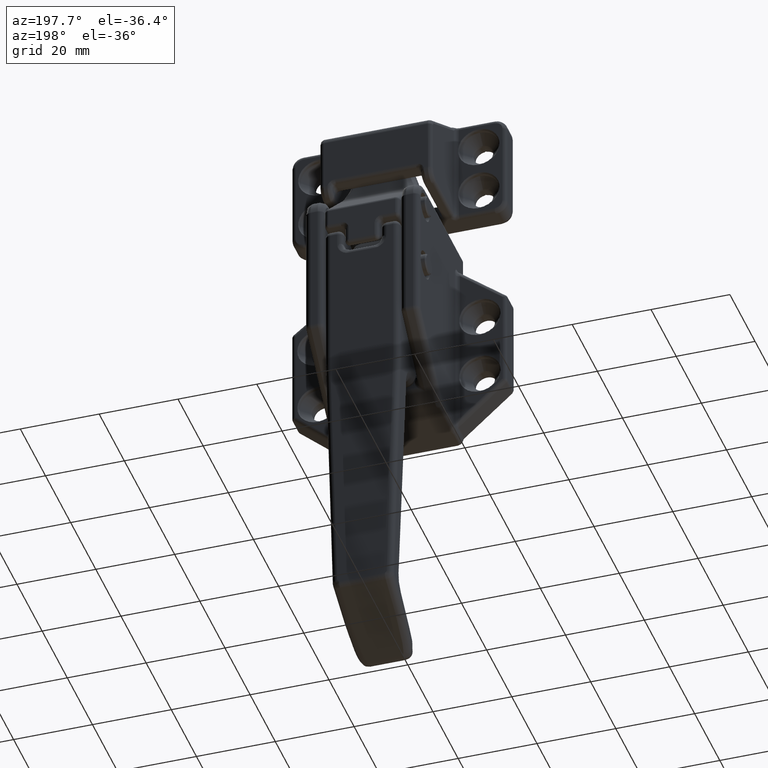
[diagram: clean part render]
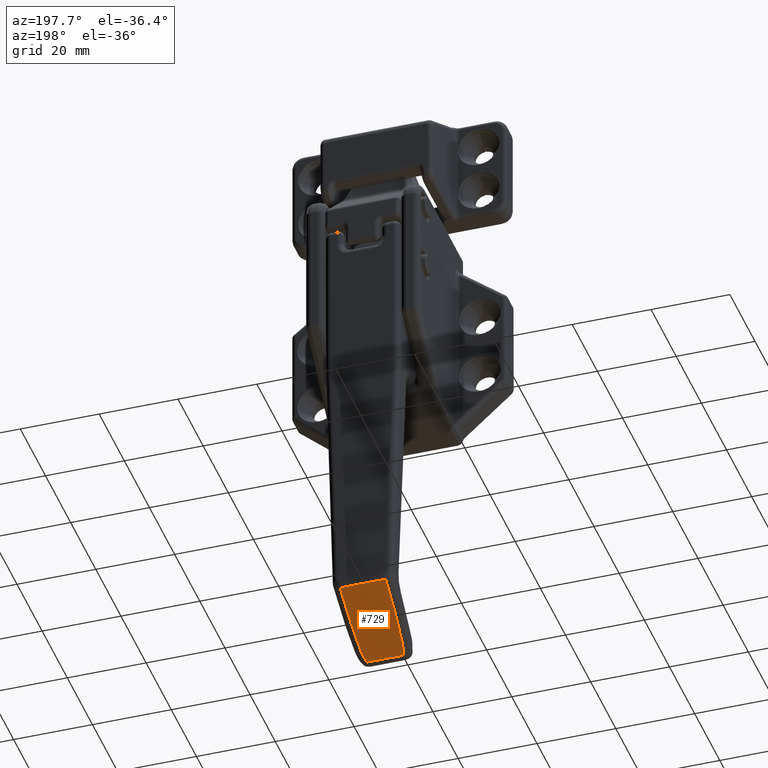
[diagram: same view with one face highlighted and labeled with its STEP entity id]
A machine part, auxiliary view. The second image highlights one B-rep face of the part: STEP entity #729.
In plain terms, the highlighted planar face has unit normal (0, -0.4987, 0.8668).
Its self-contained STEP definition (entity closure, byte-faithful):
#729=ADVANCED_FACE('',(#5757),#5756,.F.);
#5756=PLANE('',#17632);
#5757=FACE_OUTER_BOUND('',#17633,.T.);
#17629=CARTESIAN_POINT('',(-6.93823913255E+000,6.01419217497E+000,-9.42702050294E+001));
#17630=DIRECTION('',(0.00000000000E+000,-5.00000000000E-001,8.66025403784E-001));
#17631=DIRECTION('',(0.00000000000E+000,-8.66025403784E-001,-5.00000000000E-001));
#17632=AXIS2_PLACEMENT_3D('',#17629,#17630,#17631);
#17633=EDGE_LOOP('',(#26082,#26083,#26084,#26085,#26086,#26087));
#26082=ORIENTED_EDGE('',*,*,#29108,.F.);
#26083=ORIENTED_EDGE('',*,*,#29109,.F.);
#26084=ORIENTED_EDGE('',*,*,#29110,.F.);
#26085=ORIENTED_EDGE('',*,*,#29111,.F.);
#26086=ORIENTED_EDGE('',*,*,#29112,.F.);
#26087=ORIENTED_EDGE('',*,*,#29025,.F.);
#29025=EDGE_CURVE('',#37172,#37179,#37180,.T.);
#29108=EDGE_CURVE('',#37731,#37172,#37732,.T.);
#29109=EDGE_CURVE('',#37738,#37731,#37739,.T.);
#29110=EDGE_CURVE('',#37745,#37738,#37746,.T.);
#29111=EDGE_CURVE('',#37752,#37745,#37753,.T.);
#29112=EDGE_CURVE('',#37179,#37752,#37759,.T.);
#37172=VERTEX_POINT('',#49453);
#37179=VERTEX_POINT('',#49458);
#37180=LINE('',#49459,#49460);
#37731=VERTEX_POINT('',#49944);
#37732=LINE('',#49945,#49946);
#37738=VERTEX_POINT('',#49948);
#37739=(BOUNDED_CURVE() B_SPLINE_CURVE(3,(#49949,#49950,#49951,#49952,#49953,#49954,#49955,#49956,#49957,#49958,#49959,#49960,#49961,#49962,#49963,#49964,#49965,#49966,#49967,#49968,#49969,#49970,#49971,#49972,#49973,#49974,#49975,#49976,#49977,#49978,#49979,#49980,#49981,#49982,#49983,#49984,#49985,#49986,#49987,#49988,#49989,#49990,#49991,#49992,#49993,#49994,#49995,#49996,#49997,#49998,#49999,#50000,#50001,#50002,#50003,#50004),.UNSPECIFIED.,.F.,.F.) B_SPLINE_CURVE_WITH_KNOTS((4,2,2,2,2,2,2,2,2,2,2,2,2,2,2,2,2,2,2,2,2,2,2,2,2,2,2,4),(0.00000000000E+000,7.81250000000E-003,1.56250000000E-002,2.34375000000E-002,3.12500000000E-002,3.90625000000E-002,4.68750000000E-002,5.46875000000E-002,6.25000000000E-002,7.03125000000E-002,7.81250000000E-002,9.37500000000E-002,1.09375000000E-001,1.25000000000E-001,1.40625000000E-001,1.56250000000E-001,1.87500000000E-001,2.18750000000E-001,2.50000000000E-001,2.81250000000E-001,3.12500000000E-001,3.75000000000E-001,4.37500000000E-001,5.00000000000E-001,6.25000000000E-001,7.50000000000E-001,8.75000000000E-001,1.00000000000E+000),.UNSPECIFIED.) CURVE() GEOMETRIC_REPRESENTATION_ITEM() RATIONAL_B_SPLINE_CURVE((1.00000000000E+000,1.00000000000E+000,1.00000000000E+000,1.00000000000E+000,1.00000000000E+000,1.00000000000E+000,1.00000000000E+000,1.00000000000E+000,1.00000000000E+000,1.00000000000E+000,1.00000000000E+000,1.00000000000E+000,1.00000000000E+000,1.00000000000E+000,1.00000000000E+000,1.00000000000E+000,1.00000000000E+000,1.00000000000E+000,1.00000000000E+000,1.00000000000E+000,1.00000000000E+000,1.00000000000E+000,1.00000000000E+000,1.00000000000E+000,1.00000000000E+000,1.00000000000E+000,1.00000000000E+000,1.00000000000E+000,1.00000000000E+000,1.00000000000E+000,1.00000000000E+000,1.00000000000E+000,1.00000000000E+000,1.00000000000E+000,1.00000000000E+000,1.00000000000E+000,1.00000000000E+000,1.00000000000E+000,1.00000000000E+000,1.00000000000E+000,1.00000000000E+000,1.00000000000E+000,1.00000000000E+000,1.00000000000E+000,1.00000000000E+000,1.00000000000E+000,1.00000000000E+000,1.00000000000E+000,1.00000000000E+000,1.00000000000E+000,1.00000000000E+000,1.00000000000E+000,1.00000000000E+000,1.00000000000E+000,1.00000000000E+000,1.00000000000E+000)) REPRESENTATION_ITEM('') );
#37745=VERTEX_POINT('',#50005);
#37746=LINE('',#50006,#50007);
#37752=VERTEX_POINT('',#50009);
#37753=(BOUNDED_CURVE() B_SPLINE_CURVE(3,(#50010,#50011,#50012,#50013,#50014,#50015,#50016,#50017,#50018,#50019,#50020,#50021,#50022,#50023,#50024,#50025,#50026,#50027,#50028,#50029,#50030,#50031,#50032,#50033,#50034,#50035,#50036,#50037,#50038,#50039,#50040,#50041,#50042,#50043,#50044,#50045,#50046,#50047,#50048,#50049,#50050,#50051,#50052,#50053,#50054,#50055,#50056,#50057,#50058,#50059,#50060,#50061,#50062,#50063,#50064,#50065),.UNSPECIFIED.,.F.,.F.) B_SPLINE_CURVE_WITH_KNOTS((4,2,2,2,2,2,2,2,2,2,2,2,2,2,2,2,2,2,2,2,2,2,2,2,2,2,2,4),(0.00000000000E+000,1.25000000000E-001,2.50000000000E-001,3.75000000000E-001,5.00000000000E-001,5.62500000000E-001,6.25000000000E-001,6.87500000000E-001,7.18750000000E-001,7.50000000000E-001,7.81250000000E-001,8.12500000000E-001,8.43750000000E-001,8.59375000000E-001,8.75000000000E-001,8.90625000000E-001,9.06250000000E-001,9.21875000000E-001,9.29687500000E-001,9.37500000000E-001,9.45312500000E-001,9.53125000000E-001,9.60937500000E-001,9.68750000000E-001,9.76562500000E-001,9.84375000000E-001,9.92187500000E-001,1.00000000000E+000),.UNSPECIFIED.) CURVE() GEOMETRIC_REPRESENTATION_ITEM() RATIONAL_B_SPLINE_CURVE((1.00000000000E+000,1.00000000000E+000,1.00000000000E+000,1.00000000000E+000,1.00000000000E+000,1.00000000000E+000,1.00000000000E+000,1.00000000000E+000,1.00000000000E+000,1.00000000000E+000,1.00000000000E+000,1.00000000000E+000,1.00000000000E+000,1.00000000000E+000,1.00000000000E+000,1.00000000000E+000,1.00000000000E+000,1.00000000000E+000,1.00000000000E+000,1.00000000000E+000,1.00000000000E+000,1.00000000000E+000,1.00000000000E+000,1.00000000000E+000,1.00000000000E+000,1.00000000000E+000,1.00000000000E+000,1.00000000000E+000,1.00000000000E+000,1.00000000000E+000,1.00000000000E+000,1.00000000000E+000,1.00000000000E+000,1.00000000000E+000,1.00000000000E+000,1.00000000000E+000,1.00000000000E+000,1.00000000000E+000,1.00000000000E+000,1.00000000000E+000,1.00000000000E+000,1.00000000000E+000,1.00000000000E+000,1.00000000000E+000,1.00000000000E+000,1.00000000000E+000,1.00000000000E+000,1.00000000000E+000,1.00000000000E+000,1.00000000000E+000,1.00000000000E+000,1.00000000000E+000,1.00000000000E+000,1.00000000000E+000,1.00000000000E+000,1.00000000000E+000)) REPRESENTATION_ITEM('') );
#37759=LINE('',#50066,#50067);
#49453=CARTESIAN_POINT('',(5.78186594379E+000,4.24999999999E+000,-9.52887618546E+001));
#49458=CARTESIAN_POINT('',(-5.78186594379E+000,4.25000000000E+000,-9.52887618546E+001));
#49459=CARTESIAN_POINT('',(5.78186594379E+000,4.24999999999E+000,-9.52887618546E+001));
#49460=VECTOR('',#49461,1.15637318876E+001);
#49461=DIRECTION('',(-1.00000000000E+000,8.91271302586E-013,5.13686872776E-013));
#49944=CARTESIAN_POINT('',(5.65371545555E+000,-4.22643097285E+000,-1.00182631558E+002));
#49945=CARTESIAN_POINT('',(5.65371545555E+000,-4.22643097285E+000,-1.00182631558E+002));
#49946=VECTOR('',#49947,9.78857830658E+000);
#49947=DIRECTION('',(1.30918386944E-002,8.65951183855E-001,4.99957149104E-001));
#49948=CARTESIAN_POINT('',(4.49349629869E+000,-1.33919217412E+001,-1.05474330121E+002));
#49949=CARTESIAN_POINT('',(4.49349629869E+000,-1.33919217412E+001,-1.05474330121E+002));
#49950=CARTESIAN_POINT('',(4.49764286950E+000,-1.33919217412E+001,-1.05474330121E+002));
#49951=CARTESIAN_POINT('',(4.50179349001E+000,-1.33916903341E+001,-1.05474196518E+002));
#49952=CARTESIAN_POINT('',(4.51010218105E+000,-1.33907647421E+001,-1.05473662127E+002));
#49953=CARTESIAN_POINT('',(4.51426025546E+000,-1.33900705567E+001,-1.05473261339E+002));
#49954=CARTESIAN_POINT('',(4.52258321084E+000,-1.33882195157E+001,-1.05472192640E+002));
#49955=CARTESIAN_POINT('',(4.52674809566E+000,-1.33870626594E+001,-1.05471524729E+002));
#49956=CARTESIAN_POINT('',(4.53508402778E+000,-1.33842864560E+001,-1.05469921887E+002));
#49957=CARTESIAN_POINT('',(4.53925507866E+000,-1.33826671077E+001,-1.05468986956E+002));
#49958=CARTESIAN_POINT('',(4.54760269789E+000,-1.33789661713E+001,-1.05466850219E+002));
#49959=CARTESIAN_POINT('',(4.55177926950E+000,-1.33768845817E+001,-1.05465648413E+002));
#49960=CARTESIAN_POINT('',(4.56013728440E+000,-1.33722594847E+001,-1.05462978112E+002));
#49961=CARTESIAN_POINT('',(4.56431873061E+000,-1.33697159758E+001,-1.05461509616E+002));
#49962=CARTESIAN_POINT('',(4.57268584811E+000,-1.33641674339E+001,-1.05458306164E+002));
#49963=CARTESIAN_POINT('',(4.57687152201E+000,-1.33611623992E+001,-1.05456571206E+002));
#49964=CARTESIAN_POINT('',(4.58524644765E+000,-1.33546912706E+001,-1.05452835099E+002));
#49965=CARTESIAN_POINT('',(4.58943570168E+000,-1.33512251751E+001,-1.05450833947E+002));
#49966=CARTESIAN_POINT('',(4.59781713977E+000,-1.33438324611E+001,-1.05446565762E+002));
#49967=CARTESIAN_POINT('',(4.60200932584E+000,-1.33399058409E+001,-1.05444298727E+002));
#49968=CARTESIAN_POINT('',(4.61039597969E+000,-1.33315926852E+001,-1.05439499124E+002));
#49969=CARTESIAN_POINT('',(4.61459044924E+000,-1.33272061479E+001,-1.05436966556E+002));
#49970=CARTESIAN_POINT('',(4.62717630740E+000,-1.33133576808E+001,-1.05428971139E+002));
#49971=CARTESIAN_POINT('',(4.63557015030E+000,-1.33032068553E+001,-1.05423110558E+002));
#49972=CARTESIAN_POINT('',(4.65235917811E+000,-1.32810744639E+001,-1.05410332415E+002));
#49973=CARTESIAN_POINT('',(4.66075436541E+000,-1.32690928948E+001,-1.05403414853E+002));
#49974=CARTESIAN_POINT('',(4.67754088753E+000,-1.32433064304E+001,-1.05388527031E+002));
#49975=CARTESIAN_POINT('',(4.68593222425E+000,-1.32295015322E+001,-1.05380556769E+002));
#49976=CARTESIAN_POINT('',(4.70270585297E+000,-1.32000769517E+001,-1.05363568480E+002));
#49977=CARTESIAN_POINT('',(4.71108814648E+000,-1.31844572669E+001,-1.05354550451E+002));
#49978=CARTESIAN_POINT('',(4.72783850206E+000,-1.31514127787E+001,-1.05335472207E+002));
#49979=CARTESIAN_POINT('',(4.73620656536E+000,-1.31339879729E+001,-1.05325411990E+002));
#49980=CARTESIAN_POINT('',(4.76128164105E+000,-1.30790220514E+001,-1.05293677401E+002));
#49981=CARTESIAN_POINT('',(4.77795953469E+000,-1.30387888734E+001,-1.05270448765E+002));
#49982=CARTESIAN_POINT('',(4.81119640256E+000,-1.29512436208E+001,-1.05219904489E+002));
#49983=CARTESIAN_POINT('',(4.82775537504E+000,-1.29039315509E+001,-1.05192588853E+002));
#49984=CARTESIAN_POINT('',(4.86071341987E+000,-1.28023456034E+001,-1.05133938179E+002));
#49985=CARTESIAN_POINT('',(4.87711249011E+000,-1.27480717324E+001,-1.05102603145E+002));
#49986=CARTESIAN_POINT('',(4.90971014532E+000,-1.26326965010E+001,-1.05035991224E+002));
#49987=CARTESIAN_POINT('',(4.92590872794E+000,-1.25715951491E+001,-1.05000714342E+002));
#49988=CARTESIAN_POINT('',(4.95806531888E+000,-1.24427161713E+001,-1.04926306030E+002));
#49989=CARTESIAN_POINT('',(4.97402332469E+000,-1.23749385556E+001,-1.04887174605E+002));
#49990=CARTESIAN_POINT('',(5.02147724010E+000,-1.21618429055E+001,-1.04764143774E+002));
#49991=CARTESIAN_POINT('',(5.05255264530E+000,-1.20067542769E+001,-1.04674603312E+002));
#49992=CARTESIAN_POINT('',(5.11327514053E+000,-1.16720606359E+001,-1.04481367849E+002));
#49993=CARTESIAN_POINT('',(5.14292213229E+000,-1.14924561653E+001,-1.04377673159E+002));
#49994=CARTESIAN_POINT('',(5.20049448878E+000,-1.11105076461E+001,-1.04157155079E+002));
#49995=CARTESIAN_POINT('',(5.22841976015E+000,-1.09081642170E+001,-1.04040332046E+002));
#49996=CARTESIAN_POINT('',(5.30919871463E+000,-1.02700272261E+001,-1.03671903482E+002));
#49997=CARTESIAN_POINT('',(5.35904412396E+000,-9.80303736753E+000,-1.03402286762E+002));
#49998=CARTESIAN_POINT('',(5.44875797223E+000,-8.80431360644E+000,-1.02825673329E+002));
#49999=CARTESIAN_POINT('',(5.48862407075E+000,-8.27260575850E+000,-1.02518691660E+002));
#50000=CARTESIAN_POINT('',(5.55680500645E+000,-7.16543255643E+000,-1.01879464914E+002));
#50001=CARTESIAN_POINT('',(5.58511806487E+000,-6.58999608749E+000,-1.01547236514E+002));
#50002=CARTESIAN_POINT('',(5.62907461973E+000,-5.41807952595E+000,-1.00870630171E+002));
#50003=CARTESIAN_POINT('',(5.64471688656E+000,-4.82163548591E+000,-1.00526273044E+002));
#50004=CARTESIAN_POINT('',(5.65371545555E+000,-4.22643097285E+000,-1.00182631558E+002));
#50005=CARTESIAN_POINT('',(-4.49349629869E+000,-1.33919217412E+001,-1.05474330121E+002));
#50006=CARTESIAN_POINT('',(-4.49349629869E+000,-1.33919217412E+001,-1.05474330121E+002));
#50007=VECTOR('',#50008,8.98699259737E+000);
#50008=DIRECTION('',(1.00000000000E+000,-1.64550827519E-012,-9.53505335675E-013));
#50009=CARTESIAN_POINT('',(-5.65371545555E+000,-4.22643097285E+000,-1.00182631558E+002));
#50010=CARTESIAN_POINT('',(-5.65371545555E+000,-4.22643097285E+000,-1.00182631558E+002));
#50011=CARTESIAN_POINT('',(-5.64471688656E+000,-4.82163548591E+000,-1.00526273044E+002));
#50012=CARTESIAN_POINT('',(-5.62907461973E+000,-5.41807952595E+000,-1.00870630171E+002));
#50013=CARTESIAN_POINT('',(-5.58511806487E+000,-6.58999608749E+000,-1.01547236514E+002));
#50014=CARTESIAN_POINT('',(-5.55680500645E+000,-7.16543255643E+000,-1.01879464914E+002));
#50015=CARTESIAN_POINT('',(-5.48862407075E+000,-8.27260575850E+000,-1.02518691660E+002));
#50016=CARTESIAN_POINT('',(-5.44875797223E+000,-8.80431360644E+000,-1.02825673329E+002));
#50017=CARTESIAN_POINT('',(-5.35904412396E+000,-9.80303736753E+000,-1.03402286762E+002));
#50018=CARTESIAN_POINT('',(-5.30919871463E+000,-1.02700272261E+001,-1.03671903482E+002));
#50019=CARTESIAN_POINT('',(-5.22841976015E+000,-1.09081642170E+001,-1.04040332046E+002));
#50020=CARTESIAN_POINT('',(-5.20049448878E+000,-1.11105076461E+001,-1.04157155079E+002));
#50021=CARTESIAN_POINT('',(-5.14292213229E+000,-1.14924561653E+001,-1.04377673159E+002));
#50022=CARTESIAN_POINT('',(-5.11327514053E+000,-1.16720606359E+001,-1.04481367849E+002));
#50023=CARTESIAN_POINT('',(-5.05255264530E+000,-1.20067542769E+001,-1.04674603312E+002));
#50024=CARTESIAN_POINT('',(-5.02147724010E+000,-1.21618429055E+001,-1.04764143774E+002));
#50025=CARTESIAN_POINT('',(-4.97402332469E+000,-1.23749385556E+001,-1.04887174605E+002));
#50026=CARTESIAN_POINT('',(-4.95806531888E+000,-1.24427161713E+001,-1.04926306030E+002));
#50027=CARTESIAN_POINT('',(-4.92590872794E+000,-1.25715951491E+001,-1.05000714342E+002));
#50028=CARTESIAN_POINT('',(-4.90971014532E+000,-1.26326965010E+001,-1.05035991224E+002));
#50029=CARTESIAN_POINT('',(-4.87711249011E+000,-1.27480717324E+001,-1.05102603145E+002));
#50030=CARTESIAN_POINT('',(-4.86071341987E+000,-1.28023456034E+001,-1.05133938179E+002));
#50031=CARTESIAN_POINT('',(-4.82775537504E+000,-1.29039315509E+001,-1.05192588853E+002));
#50032=CARTESIAN_POINT('',(-4.81119640256E+000,-1.29512436208E+001,-1.05219904489E+002));
#50033=CARTESIAN_POINT('',(-4.77795953469E+000,-1.30387888734E+001,-1.05270448765E+002));
#50034=CARTESIAN_POINT('',(-4.76128164105E+000,-1.30790220514E+001,-1.05293677401E+002));
#50035=CARTESIAN_POINT('',(-4.73620656536E+000,-1.31339879729E+001,-1.05325411990E+002));
#50036=CARTESIAN_POINT('',(-4.72783850206E+000,-1.31514127787E+001,-1.05335472207E+002));
#50037=CARTESIAN_POINT('',(-4.71108814648E+000,-1.31844572669E+001,-1.05354550451E+002));
#50038=CARTESIAN_POINT('',(-4.70270585297E+000,-1.32000769517E+001,-1.05363568480E+002));
#50039=CARTESIAN_POINT('',(-4.68593222425E+000,-1.32295015322E+001,-1.05380556769E+002));
#50040=CARTESIAN_POINT('',(-4.67754088753E+000,-1.32433064304E+001,-1.05388527031E+002));
#50041=CARTESIAN_POINT('',(-4.66075436541E+000,-1.32690928948E+001,-1.05403414853E+002));
#50042=CARTESIAN_POINT('',(-4.65235917811E+000,-1.32810744639E+001,-1.05410332415E+002));
#50043=CARTESIAN_POINT('',(-4.63557015030E+000,-1.33032068553E+001,-1.05423110558E+002));
#50044=CARTESIAN_POINT('',(-4.62717630740E+000,-1.33133576808E+001,-1.05428971139E+002));
#50045=CARTESIAN_POINT('',(-4.61459044924E+000,-1.33272061479E+001,-1.05436966556E+002));
#50046=CARTESIAN_POINT('',(-4.61039597969E+000,-1.33315926852E+001,-1.05439499124E+002));
#50047=CARTESIAN_POINT('',(-4.60200932584E+000,-1.33399058409E+001,-1.05444298727E+002));
#50048=CARTESIAN_POINT('',(-4.59781713977E+000,-1.33438324611E+001,-1.05446565762E+002));
#50049=CARTESIAN_POINT('',(-4.58943570168E+000,-1.33512251751E+001,-1.05450833947E+002));
#50050=CARTESIAN_POINT('',(-4.58524644765E+000,-1.33546912706E+001,-1.05452835099E+002));
#50051=CARTESIAN_POINT('',(-4.57687152201E+000,-1.33611623992E+001,-1.05456571206E+002));
#50052=CARTESIAN_POINT('',(-4.57268584811E+000,-1.33641674339E+001,-1.05458306164E+002));
#50053=CARTESIAN_POINT('',(-4.56431873061E+000,-1.33697159758E+001,-1.05461509616E+002));
#50054=CARTESIAN_POINT('',(-4.56013728440E+000,-1.33722594847E+001,-1.05462978112E+002));
#50055=CARTESIAN_POINT('',(-4.55177926950E+000,-1.33768845817E+001,-1.05465648413E+002));
#50056=CARTESIAN_POINT('',(-4.54760269789E+000,-1.33789661713E+001,-1.05466850219E+002));
#50057=CARTESIAN_POINT('',(-4.53925507866E+000,-1.33826671077E+001,-1.05468986956E+002));
#50058=CARTESIAN_POINT('',(-4.53508402778E+000,-1.33842864560E+001,-1.05469921887E+002));
#50059=CARTESIAN_POINT('',(-4.52674809566E+000,-1.33870626594E+001,-1.05471524729E+002));
#50060=CARTESIAN_POINT('',(-4.52258321084E+000,-1.33882195157E+001,-1.05472192640E+002));
#50061=CARTESIAN_POINT('',(-4.51426025546E+000,-1.33900705567E+001,-1.05473261339E+002));
#50062=CARTESIAN_POINT('',(-4.51010218105E+000,-1.33907647421E+001,-1.05473662127E+002));
#50063=CARTESIAN_POINT('',(-4.50179349001E+000,-1.33916903341E+001,-1.05474196518E+002));
#50064=CARTESIAN_POINT('',(-4.49764286950E+000,-1.33919217412E+001,-1.05474330121E+002));
#50065=CARTESIAN_POINT('',(-4.49349629869E+000,-1.33919217412E+001,-1.05474330121E+002));
#50066=CARTESIAN_POINT('',(-5.78186594379E+000,4.25000000000E+000,-9.52887618546E+001));
#50067=VECTOR('',#50068,9.78857830659E+000);
#50068=DIRECTION('',(1.30918386944E-002,-8.65951183855E-001,-4.99957149104E-001));